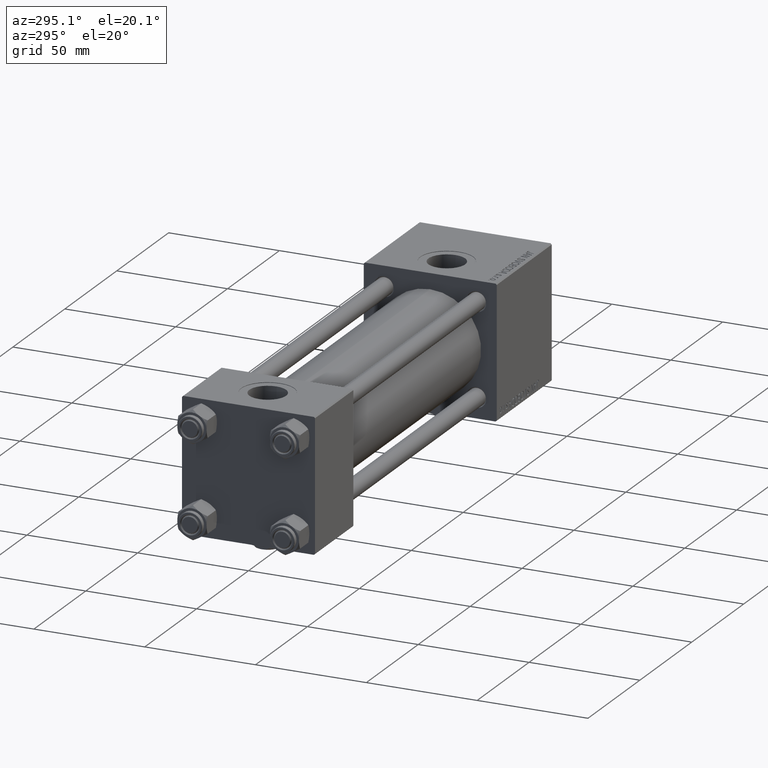
[diagram: clean part render]
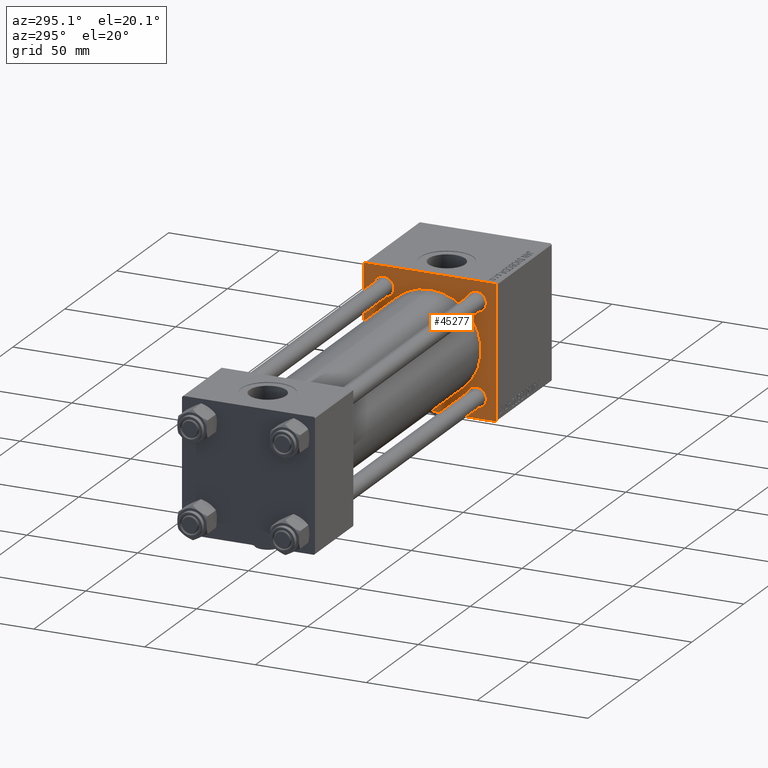
[diagram: same view with one face highlighted and labeled with its STEP entity id]
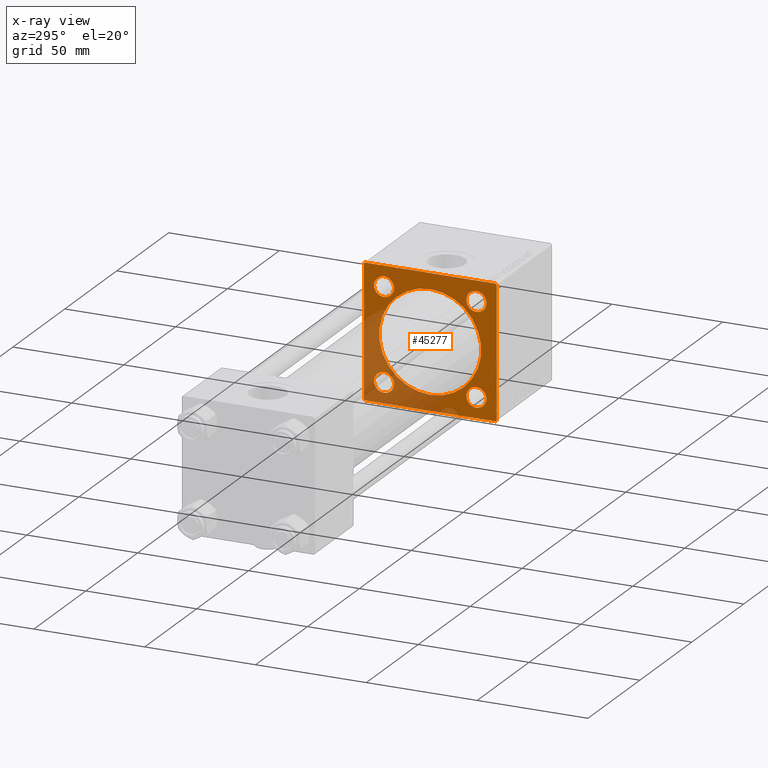
[diagram: x-ray of the same camera — body ghosted, the highlighted face saturated]
A machine part, auxiliary view. The second image highlights one B-rep face of the part: STEP entity #45277.
The next image is the same camera in x-ray: the body ghosted, the highlighted face saturated — about 31% of this face is hidden behind the body in this view.
In plain terms, the highlighted planar face has unit normal (-1, 0, 0).
Its self-contained STEP definition (entity closure, byte-faithful):
#158 = EDGE_CURVE ( 'NONE', #50629, #12192, #24170, .T. ) ;
#318 = EDGE_CURVE ( 'NONE', #9897, #40450, #8096, .T. ) ;
#592 = EDGE_CURVE ( 'NONE', #14596, #23910, #49029, .T. ) ;
#756 = EDGE_CURVE ( 'NONE', #38624, #49509, #9498, .T. ) ;
#905 = CARTESIAN_POINT ( 'NONE',  ( 175.0000000000000284, 0.000000000000000000, 0.000000000000000000 ) ) ;
#1464 = CARTESIAN_POINT ( 'NONE',  ( 175.0000000000000284, 29.50000000000002487, 30.00000000000000000 ) ) ;
#1699 = AXIS2_PLACEMENT_3D ( 'NONE', #52567, #43777, #23478 ) ;
#1894 = VECTOR ( 'NONE', #49096, 1000.000000000000000 ) ;
#2309 = VECTOR ( 'NONE', #14716, 1000.000000000000000 ) ;
#2578 = ORIENTED_EDGE ( 'NONE', *, *, #23113, .F. ) ;
#3398 = DIRECTION ( 'NONE',  ( 1.000000000000000000, -0.000000000000000000, 0.000000000000000000 ) ) ;
#3496 = CIRCLE ( 'NONE', #43592, 4.500000000000007105 ) ;
#3867 = FACE_BOUND ( 'NONE', #23276, .T. ) ;
#3937 = EDGE_LOOP ( 'NONE', ( #43942, #3949 ) ) ;
#3949 = ORIENTED_EDGE ( 'NONE', *, *, #318, .T. ) ;
#4666 = EDGE_LOOP ( 'NONE', ( #38841, #49115 ) ) ;
#4820 = DIRECTION ( 'NONE',  ( 0.000000000000000000, 0.000000000000000000, 1.000000000000000000 ) ) ;
#4957 = DIRECTION ( 'NONE',  ( 0.000000000000000000, -1.000000000000000000, -1.156482317317871478E-16 ) ) ;
#5180 = FACE_OUTER_BOUND ( 'NONE', #8934, .T. ) ;
#5297 = CARTESIAN_POINT ( 'NONE',  ( 175.0000000000000284, -30.00000000000000000, -29.49999999999998579 ) ) ;
#5336 = CARTESIAN_POINT ( 'NONE',  ( 175.0000000000000284, 20.84999999999999787, -20.85000000000000142 ) ) ;
#5886 = CARTESIAN_POINT ( 'NONE',  ( 175.0000000000000284, -29.74999999999999645, 29.74999999999999645 ) ) ;
#6203 = LINE ( 'NONE', #9666, #2309 ) ;
#7152 = EDGE_CURVE ( 'NONE', #30004, #11401, #13201, .T. ) ;
#7269 = DIRECTION ( 'NONE',  ( 1.000000000000000000, -0.000000000000000000, 0.000000000000000000 ) ) ;
#7286 = CARTESIAN_POINT ( 'NONE',  ( 175.0000000000000284, 2.146024240737016609E-16, -23.00000000000000000 ) ) ;
#8096 = CIRCLE ( 'NONE', #42219, 23.00000000000000000 ) ;
#8572 = CARTESIAN_POINT ( 'NONE',  ( 175.0000000000000284, 20.84999999999999787, -25.35000000000000853 ) ) ;
#8934 = EDGE_LOOP ( 'NONE', ( #40381, #16666, #42697, #32498, #2578, #22907, #27251, #22646 ) ) ;
#9498 = LINE ( 'NONE', #25781, #26014 ) ;
#9666 = CARTESIAN_POINT ( 'NONE',  ( 175.0000000000000284, 29.75000000000082778, 29.74999999999917577 ) ) ;
#9897 = VERTEX_POINT ( 'NONE', #7286 ) ;
#10894 = VERTEX_POINT ( 'NONE', #42101 ) ;
#11401 = VERTEX_POINT ( 'NONE', #30000 ) ;
#11742 = CARTESIAN_POINT ( 'NONE',  ( 175.0000000000000284, -30.00000000000000000, 29.49999999999999289 ) ) ;
#11751 = VERTEX_POINT ( 'NONE', #11742 ) ;
#12192 = VERTEX_POINT ( 'NONE', #14499 ) ;
#12820 = EDGE_CURVE ( 'NONE', #49509, #30004, #33372, .T. ) ;
#13201 = LINE ( 'NONE', #25504, #23892 ) ;
#14499 = CARTESIAN_POINT ( 'NONE',  ( 175.0000000000000284, 20.84999999999999787, 16.34999999999999432 ) ) ;
#14596 = VERTEX_POINT ( 'NONE', #36948 ) ;
#14716 = DIRECTION ( 'NONE',  ( 0.000000000000000000, 0.7071067811865279218, -0.7071067811865671127 ) ) ;
#14964 = CARTESIAN_POINT ( 'NONE',  ( 175.0000000000000284, 29.50000000000000000, -29.99999999999999289 ) ) ;
#15812 = EDGE_CURVE ( 'NONE', #40450, #9897, #39402, .T. ) ;
#15979 = EDGE_CURVE ( 'NONE', #11401, #18107, #37613, .T. ) ;
#16583 = ORIENTED_EDGE ( 'NONE', *, *, #592, .T. ) ;
#16616 = CARTESIAN_POINT ( 'NONE',  ( 175.0000000000000284, -2.602085213965210642E-15, 23.00000000000000000 ) ) ;
#16666 = ORIENTED_EDGE ( 'NONE', *, *, #15979, .T. ) ;
#16807 = CARTESIAN_POINT ( 'NONE',  ( 175.0000000000000284, 29.75000000000081712, -29.74999999999916156 ) ) ;
#17446 = FACE_BOUND ( 'NONE', #3937, .T. ) ;
#17600 = DIRECTION ( 'NONE',  ( 1.000000000000000000, -0.000000000000000000, 0.000000000000000000 ) ) ;
#17847 = VERTEX_POINT ( 'NONE', #8572 ) ;
#18102 = CARTESIAN_POINT ( 'NONE',  ( 175.0000000000000284, -20.84999999999999076, 25.35000000000001208 ) ) ;
#18107 = VERTEX_POINT ( 'NONE', #5297 ) ;
#18297 = DIRECTION ( 'NONE',  ( 0.000000000000000000, 0.000000000000000000, 1.000000000000000000 ) ) ;
#19205 = EDGE_CURVE ( 'NONE', #52768, #44932, #40390, .T. ) ;
#19779 = ORIENTED_EDGE ( 'NONE', *, *, #158, .T. ) ;
#20120 = CARTESIAN_POINT ( 'NONE',  ( 175.0000000000000284, 30.00000000000000000, 30.00000000000000000 ) ) ;
#20140 = FACE_BOUND ( 'NONE', #20654, .T. ) ;
#20334 = CARTESIAN_POINT ( 'NONE',  ( 175.0000000000000284, -20.84999999999999076, 20.85000000000000497 ) ) ;
#20654 = EDGE_LOOP ( 'NONE', ( #31749, #34684 ) ) ;
#20757 = ORIENTED_EDGE ( 'NONE', *, *, #47902, .T. ) ;
#20924 = DIRECTION ( 'NONE',  ( 0.000000000000000000, 0.000000000000000000, 1.000000000000000000 ) ) ;
#21466 = DIRECTION ( 'NONE',  ( -1.000000000000000000, 0.000000000000000000, -0.000000000000000000 ) ) ;
#21738 = EDGE_LOOP ( 'NONE', ( #20757, #16583 ) ) ;
#22141 = CIRCLE ( 'NONE', #46012, 4.500000000000007105 ) ;
#22301 = CARTESIAN_POINT ( 'NONE',  ( 175.0000000000000284, 20.84999999999999787, 25.35000000000000853 ) ) ;
#22646 = ORIENTED_EDGE ( 'NONE', *, *, #12820, .T. ) ;
#22907 = ORIENTED_EDGE ( 'NONE', *, *, #27424, .T. ) ;
#23113 = EDGE_CURVE ( 'NONE', #47403, #10894, #27621, .T. ) ;
#23276 = EDGE_LOOP ( 'NONE', ( #19779, #28497 ) ) ;
#23478 = DIRECTION ( 'NONE',  ( 0.000000000000000000, 0.000000000000000000, 1.000000000000000000 ) ) ;
#23686 = EDGE_CURVE ( 'NONE', #11751, #10894, #42469, .T. ) ;
#23892 = VECTOR ( 'NONE', #4957, 1000.000000000000000 ) ;
#23910 = VERTEX_POINT ( 'NONE', #41089 ) ;
#24170 = CIRCLE ( 'NONE', #31836, 4.500000000000007105 ) ;
#24610 = CIRCLE ( 'NONE', #40819, 4.500000000000007105 ) ;
#24807 = CARTESIAN_POINT ( 'NONE',  ( 175.0000000000000284, -29.75000000000082778, -29.74999999999917577 ) ) ;
#25504 = CARTESIAN_POINT ( 'NONE',  ( 175.0000000000000284, 30.00000000000000000, -29.99999999999999289 ) ) ;
#25781 = CARTESIAN_POINT ( 'NONE',  ( 175.0000000000000284, 30.00000000000000000, 30.00000000000000000 ) ) ;
#25910 = DIRECTION ( 'NONE',  ( -0.000000000000000000, 0.7071067811865474617, 0.7071067811865474617 ) ) ;
#25991 = DIRECTION ( 'NONE',  ( -0.000000000000000000, 0.000000000000000000, 1.000000000000000000 ) ) ;
#26014 = VECTOR ( 'NONE', #41815, 1000.000000000000000 ) ;
#26290 = CARTESIAN_POINT ( 'NONE',  ( 175.0000000000000284, 20.84999999999999787, -16.34999999999999432 ) ) ;
#27251 = ORIENTED_EDGE ( 'NONE', *, *, #756, .T. ) ;
#27424 = EDGE_CURVE ( 'NONE', #47403, #38624, #6203, .T. ) ;
#27621 = LINE ( 'NONE', #20120, #33665 ) ;
#27739 = VECTOR ( 'NONE', #25910, 1000.000000000000114 ) ;
#28497 = ORIENTED_EDGE ( 'NONE', *, *, #38801, .T. ) ;
#29474 = PLANE ( 'NONE',  #37491 ) ;
#29872 = CARTESIAN_POINT ( 'NONE',  ( 175.0000000000000284, 30.00000000000000000, 29.50000000000000000 ) ) ;
#30000 = CARTESIAN_POINT ( 'NONE',  ( 175.0000000000000284, -29.50000000000002487, -30.00000000000000000 ) ) ;
#30004 = VERTEX_POINT ( 'NONE', #14964 ) ;
#30188 = DIRECTION ( 'NONE',  ( 0.000000000000000000, 0.000000000000000000, -1.000000000000000000 ) ) ;
#30357 = CARTESIAN_POINT ( 'NONE',  ( 175.0000000000000284, 30.00000000000000000, -29.49999999999995026 ) ) ;
#30455 = CARTESIAN_POINT ( 'NONE',  ( 175.0000000000000284, -2.602085213965210642E-15, 0.000000000000000000 ) ) ;
#30841 = CARTESIAN_POINT ( 'NONE',  ( 175.0000000000000284, -20.84999999999999076, 20.85000000000000497 ) ) ;
#31749 = ORIENTED_EDGE ( 'NONE', *, *, #45932, .T. ) ;
#31767 = DIRECTION ( 'NONE',  ( 1.000000000000000000, -0.000000000000000000, 0.000000000000000000 ) ) ;
#31836 = AXIS2_PLACEMENT_3D ( 'NONE', #45207, #44944, #20924 ) ;
#32498 = ORIENTED_EDGE ( 'NONE', *, *, #23686, .T. ) ;
#32573 = DIRECTION ( 'NONE',  ( -0.000000000000000000, -0.7071067811865279218, -0.7071067811865672237 ) ) ;
#32675 = AXIS2_PLACEMENT_3D ( 'NONE', #20334, #7269, #36630 ) ;
#33372 = LINE ( 'NONE', #16807, #47934 ) ;
#33665 = VECTOR ( 'NONE', #35630, 1000.000000000000000 ) ;
#34282 = VECTOR ( 'NONE', #46924, 1000.000000000000000 ) ;
#34684 = ORIENTED_EDGE ( 'NONE', *, *, #46865, .T. ) ;
#34729 = DIRECTION ( 'NONE',  ( 1.000000000000000000, 0.000000000000000000, 0.000000000000000000 ) ) ;
#35510 = CARTESIAN_POINT ( 'NONE',  ( 175.0000000000000284, -20.84999999999999076, -20.85000000000000497 ) ) ;
#35630 = DIRECTION ( 'NONE',  ( 0.000000000000000000, -1.000000000000000000, -1.156482317317871478E-16 ) ) ;
#36004 = AXIS2_PLACEMENT_3D ( 'NONE', #30455, #34729, #30188 ) ;
#36438 = FACE_BOUND ( 'NONE', #21738, .T. ) ;
#36630 = DIRECTION ( 'NONE',  ( 0.000000000000000000, 0.000000000000000000, 1.000000000000000000 ) ) ;
#36948 = CARTESIAN_POINT ( 'NONE',  ( 175.0000000000000284, -20.84999999999999076, -25.35000000000001208 ) ) ;
#37491 = AXIS2_PLACEMENT_3D ( 'NONE', #905, #21466, #25991 ) ;
#37565 = DIRECTION ( 'NONE',  ( 1.000000000000000000, -0.000000000000000000, 0.000000000000000000 ) ) ;
#37613 = LINE ( 'NONE', #24807, #1894 ) ;
#38624 = VERTEX_POINT ( 'NONE', #29872 ) ;
#38801 = EDGE_CURVE ( 'NONE', #12192, #50629, #24610, .T. ) ;
#38841 = ORIENTED_EDGE ( 'NONE', *, *, #19205, .T. ) ;
#39402 = CIRCLE ( 'NONE', #36004, 23.00000000000000000 ) ;
#39840 = DIRECTION ( 'NONE',  ( 0.000000000000000000, 0.000000000000000000, -1.000000000000000000 ) ) ;
#40381 = ORIENTED_EDGE ( 'NONE', *, *, #7152, .T. ) ;
#40390 = CIRCLE ( 'NONE', #32675, 4.500000000000007105 ) ;
#40446 = FACE_BOUND ( 'NONE', #4666, .T. ) ;
#40450 = VERTEX_POINT ( 'NONE', #16616 ) ;
#40524 = DIRECTION ( 'NONE',  ( 0.000000000000000000, 0.000000000000000000, 1.000000000000000000 ) ) ;
#40819 = AXIS2_PLACEMENT_3D ( 'NONE', #41315, #37565, #40524 ) ;
#41089 = CARTESIAN_POINT ( 'NONE',  ( 175.0000000000000284, -20.84999999999999076, -16.34999999999999787 ) ) ;
#41315 = CARTESIAN_POINT ( 'NONE',  ( 175.0000000000000284, 20.84999999999999787, 20.85000000000000142 ) ) ;
#41815 = DIRECTION ( 'NONE',  ( 0.000000000000000000, 0.000000000000000000, -1.000000000000000000 ) ) ;
#42101 = CARTESIAN_POINT ( 'NONE',  ( 175.0000000000000284, -29.50000000000000000, 29.99999999999999289 ) ) ;
#42219 = AXIS2_PLACEMENT_3D ( 'NONE', #48108, #44371, #39840 ) ;
#42469 = LINE ( 'NONE', #5886, #27739 ) ;
#42650 = CIRCLE ( 'NONE', #1699, 4.500000000000007105 ) ;
#42687 = CIRCLE ( 'NONE', #48649, 4.500000000000007105 ) ;
#42697 = ORIENTED_EDGE ( 'NONE', *, *, #51342, .F. ) ;
#43592 = AXIS2_PLACEMENT_3D ( 'NONE', #30841, #47123, #18297 ) ;
#43722 = CARTESIAN_POINT ( 'NONE',  ( 175.0000000000000284, -30.00000000000000000, 29.99999999999999289 ) ) ;
#43724 = CARTESIAN_POINT ( 'NONE',  ( 175.0000000000000284, -20.84999999999999076, -20.85000000000000497 ) ) ;
#43777 = DIRECTION ( 'NONE',  ( 1.000000000000000000, -0.000000000000000000, 0.000000000000000000 ) ) ;
#43942 = ORIENTED_EDGE ( 'NONE', *, *, #15812, .T. ) ;
#44371 = DIRECTION ( 'NONE',  ( 1.000000000000000000, 0.000000000000000000, 0.000000000000000000 ) ) ;
#44932 = VERTEX_POINT ( 'NONE', #47526 ) ;
#44944 = DIRECTION ( 'NONE',  ( 1.000000000000000000, -0.000000000000000000, 0.000000000000000000 ) ) ;
#45207 = CARTESIAN_POINT ( 'NONE',  ( 175.0000000000000284, 20.84999999999999787, 20.85000000000000142 ) ) ;
#45277 = ADVANCED_FACE ( 'NONE', ( #40446, #3867, #20140, #36438, #17446, #5180 ), #29474, .T. ) ;
#45601 = AXIS2_PLACEMENT_3D ( 'NONE', #35510, #31767, #47779 ) ;
#45932 = EDGE_CURVE ( 'NONE', #50642, #17847, #22141, .T. ) ;
#46012 = AXIS2_PLACEMENT_3D ( 'NONE', #5336, #17600, #4820 ) ;
#46865 = EDGE_CURVE ( 'NONE', #17847, #50642, #42650, .T. ) ;
#46924 = DIRECTION ( 'NONE',  ( 0.000000000000000000, 0.000000000000000000, -1.000000000000000000 ) ) ;
#47123 = DIRECTION ( 'NONE',  ( 1.000000000000000000, -0.000000000000000000, 0.000000000000000000 ) ) ;
#47403 = VERTEX_POINT ( 'NONE', #1464 ) ;
#47452 = LINE ( 'NONE', #43722, #34282 ) ;
#47526 = CARTESIAN_POINT ( 'NONE',  ( 175.0000000000000284, -20.84999999999999076, 16.34999999999999787 ) ) ;
#47779 = DIRECTION ( 'NONE',  ( 0.000000000000000000, 0.000000000000000000, 1.000000000000000000 ) ) ;
#47902 = EDGE_CURVE ( 'NONE', #23910, #14596, #42687, .T. ) ;
#47934 = VECTOR ( 'NONE', #32573, 1000.000000000000000 ) ;
#48108 = CARTESIAN_POINT ( 'NONE',  ( 175.0000000000000284, -2.602085213965210642E-15, 0.000000000000000000 ) ) ;
#48175 = EDGE_CURVE ( 'NONE', #44932, #52768, #3496, .T. ) ;
#48649 = AXIS2_PLACEMENT_3D ( 'NONE', #43724, #3398, #52774 ) ;
#49029 = CIRCLE ( 'NONE', #45601, 4.500000000000007105 ) ;
#49096 = DIRECTION ( 'NONE',  ( 0.000000000000000000, -0.7071067811865279218, 0.7071067811865671127 ) ) ;
#49115 = ORIENTED_EDGE ( 'NONE', *, *, #48175, .T. ) ;
#49509 = VERTEX_POINT ( 'NONE', #30357 ) ;
#50629 = VERTEX_POINT ( 'NONE', #22301 ) ;
#50642 = VERTEX_POINT ( 'NONE', #26290 ) ;
#51342 = EDGE_CURVE ( 'NONE', #11751, #18107, #47452, .T. ) ;
#52567 = CARTESIAN_POINT ( 'NONE',  ( 175.0000000000000284, 20.84999999999999787, -20.85000000000000142 ) ) ;
#52768 = VERTEX_POINT ( 'NONE', #18102 ) ;
#52774 = DIRECTION ( 'NONE',  ( 0.000000000000000000, 0.000000000000000000, 1.000000000000000000 ) ) ;